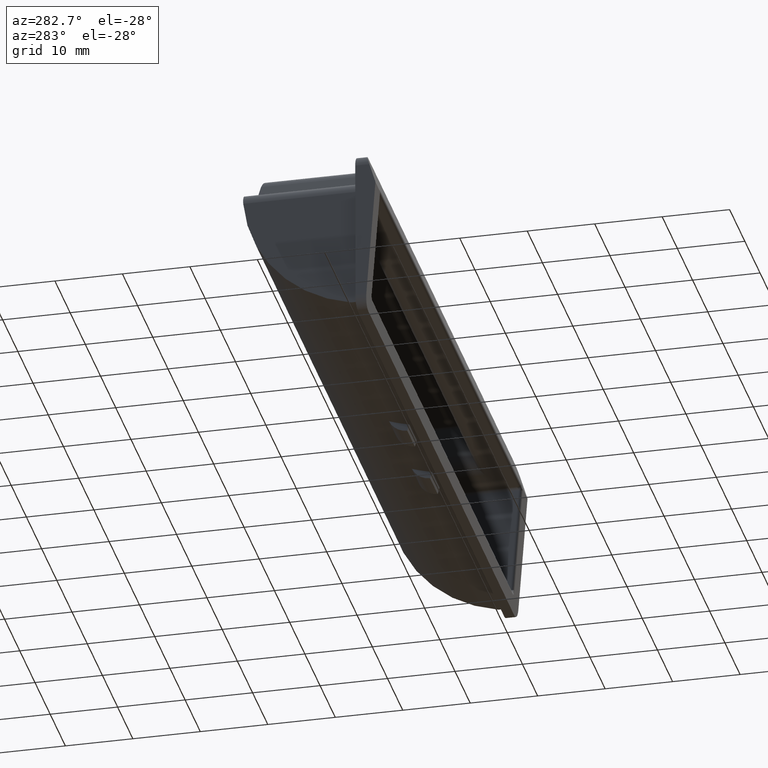
[diagram: clean part render]
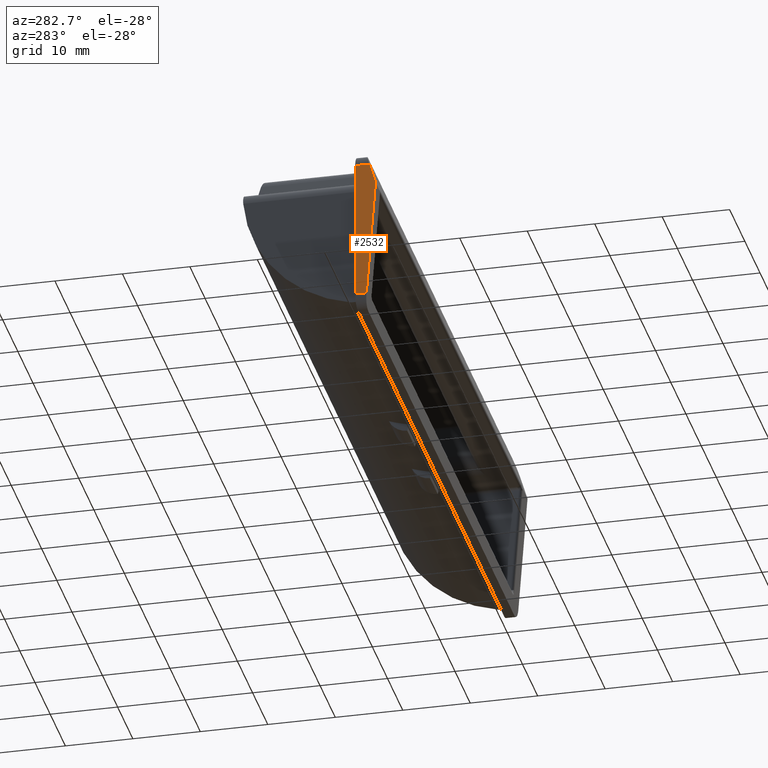
[diagram: same view with one face highlighted and labeled with its STEP entity id]
A machine part, auxiliary view. The second image highlights one B-rep face of the part: STEP entity #2532.
In plain terms, the highlighted planar face has unit normal (-1, 0, 0).
Its self-contained STEP definition (entity closure, byte-faithful):
#92 = CARTESIAN_POINT ( 'NONE',  ( -50.00000000000000000, -0.5504587155965000600, 0.1651376146789295100 ) ) ;
#134 = CARTESIAN_POINT ( 'NONE',  ( -50.00000000000000000, 0.0000000000000000000, -26.00000000000000000 ) ) ;
#291 = CARTESIAN_POINT ( 'NONE',  ( -50.00000000000000000, -1.649999999999999900, -26.00000000000000000 ) ) ;
#342 = DIRECTION ( 'NONE',  ( 0.0000000000000000000, 0.0000000000000000000, -1.000000000000000000 ) ) ;
#369 = ORIENTED_EDGE ( 'NONE', *, *, #2520, .T. ) ;
#433 = ORIENTED_EDGE ( 'NONE', *, *, #2141, .T. ) ;
#515 = VECTOR ( 'NONE', #888, 1000.000000000000000 ) ;
#542 = VECTOR ( 'NONE', #1554, 1000.000000000000000 ) ;
#544 = CARTESIAN_POINT ( 'NONE',  ( -50.00000000000000000, -3.579863269111125000, -0.2684897451833180300 ) ) ;
#584 = LINE ( 'NONE', #2269, #1608 ) ;
#616 = VERTEX_POINT ( 'NONE', #134 ) ;
#633 = CARTESIAN_POINT ( 'NONE',  ( -50.00000000000000000, -2.993073167452394900, -8.092357767300210700 ) ) ;
#682 = CARTESIAN_POINT ( 'NONE',  ( -50.00000000000000000, 0.0000000000000000000, -5.000000000000000000 ) ) ;
#888 = DIRECTION ( 'NONE',  ( 0.0000000000000000000, 1.000000000000000000, 0.0000000000000000000 ) ) ;
#909 = ORIENTED_EDGE ( 'NONE', *, *, #1033, .T. ) ;
#931 = DIRECTION ( 'NONE',  ( 0.0000000000000000000, 1.000000000000000000, 0.0000000000000000000 ) ) ;
#965 = EDGE_CURVE ( 'NONE', #1588, #1037, #1093, .T. ) ;
#1000 = CARTESIAN_POINT ( 'NONE',  ( -50.00000000000000000, -2.100000000000000100, -5.000000000000000000 ) ) ;
#1033 = EDGE_CURVE ( 'NONE', #1037, #1649, #2278, .T. ) ;
#1036 = DIRECTION ( 'NONE',  ( 0.0000000000000000000, -1.000000000000000000, 0.0000000000000000000 ) ) ;
#1037 = VERTEX_POINT ( 'NONE', #1375 ) ;
#1093 = CIRCLE ( 'NONE', #1220, 0.5000000000000004400 ) ;
#1116 = AXIS2_PLACEMENT_3D ( 'NONE', #1761, #2185, #931 ) ;
#1176 = VERTEX_POINT ( 'NONE', #291 ) ;
#1220 = AXIS2_PLACEMENT_3D ( 'NONE', #2060, #2055, #2047 ) ;
#1236 = VECTOR ( 'NONE', #1036, 1000.000000000000000 ) ;
#1362 = EDGE_LOOP ( 'NONE', ( #433, #1450, #909, #369, #1962, #2729 ) ) ;
#1368 = DIRECTION ( 'NONE',  ( 0.0000000000000000000, 0.2873478855663125800, 0.9578262852211612000 ) ) ;
#1375 = CARTESIAN_POINT ( 'NONE',  ( -50.00000000000000000, -2.973386655118745100, -7.911288850396229800 ) ) ;
#1404 = VERTEX_POINT ( 'NONE', #2232 ) ;
#1450 = ORIENTED_EDGE ( 'NONE', *, *, #965, .T. ) ;
#1465 = LINE ( 'NONE', #682, #515 ) ;
#1486 = EDGE_CURVE ( 'NONE', #1404, #616, #584, .T. ) ;
#1554 = DIRECTION ( 'NONE',  ( 0.0000000000000000000, -0.07478994824162968300, 0.9971993098884567300 ) ) ;
#1588 = VERTEX_POINT ( 'NONE', #633 ) ;
#1608 = VECTOR ( 'NONE', #342, 1000.000000000000000 ) ;
#1649 = VERTEX_POINT ( 'NONE', #1000 ) ;
#1761 = CARTESIAN_POINT ( 'NONE',  ( -50.00000000000000000, 0.0000000000000000000, 0.0000000000000000000 ) ) ;
#1808 = LINE ( 'NONE', #2511, #1236 ) ;
#1962 = ORIENTED_EDGE ( 'NONE', *, *, #1486, .T. ) ;
#1979 = PLANE ( 'NONE',  #1116 ) ;
#2039 = FACE_OUTER_BOUND ( 'NONE', #1362, .T. ) ;
#2047 = DIRECTION ( 'NONE',  ( 0.0000000000000000000, 0.0000000000000000000, 1.000000000000000000 ) ) ;
#2055 = DIRECTION ( 'NONE',  ( -1.000000000000000000, 0.0000000000000000000, 0.0000000000000000000 ) ) ;
#2060 = CARTESIAN_POINT ( 'NONE',  ( -50.00000000000000000, -2.494473512508165000, -8.054962793179390300 ) ) ;
#2141 = EDGE_CURVE ( 'NONE', #1176, #1588, #2202, .T. ) ;
#2148 = VECTOR ( 'NONE', #1368, 1000.000000000000200 ) ;
#2185 = DIRECTION ( 'NONE',  ( -1.000000000000000000, 0.0000000000000000000, 0.0000000000000000000 ) ) ;
#2202 = LINE ( 'NONE', #544, #542 ) ;
#2232 = CARTESIAN_POINT ( 'NONE',  ( -50.00000000000000000, 0.0000000000000000000, -5.000000000000000000 ) ) ;
#2269 = CARTESIAN_POINT ( 'NONE',  ( -50.00000000000000000, 0.0000000000000000000, 0.0000000000000000000 ) ) ;
#2278 = LINE ( 'NONE', #92, #2148 ) ;
#2320 = EDGE_CURVE ( 'NONE', #616, #1176, #1808, .T. ) ;
#2511 = CARTESIAN_POINT ( 'NONE',  ( -50.00000000000000000, 0.0000000000000000000, -26.00000000000000000 ) ) ;
#2520 = EDGE_CURVE ( 'NONE', #1649, #1404, #1465, .T. ) ;
#2532 = ADVANCED_FACE ( 'NONE', ( #2039 ), #1979, .T. ) ;
#2729 = ORIENTED_EDGE ( 'NONE', *, *, #2320, .T. ) ;